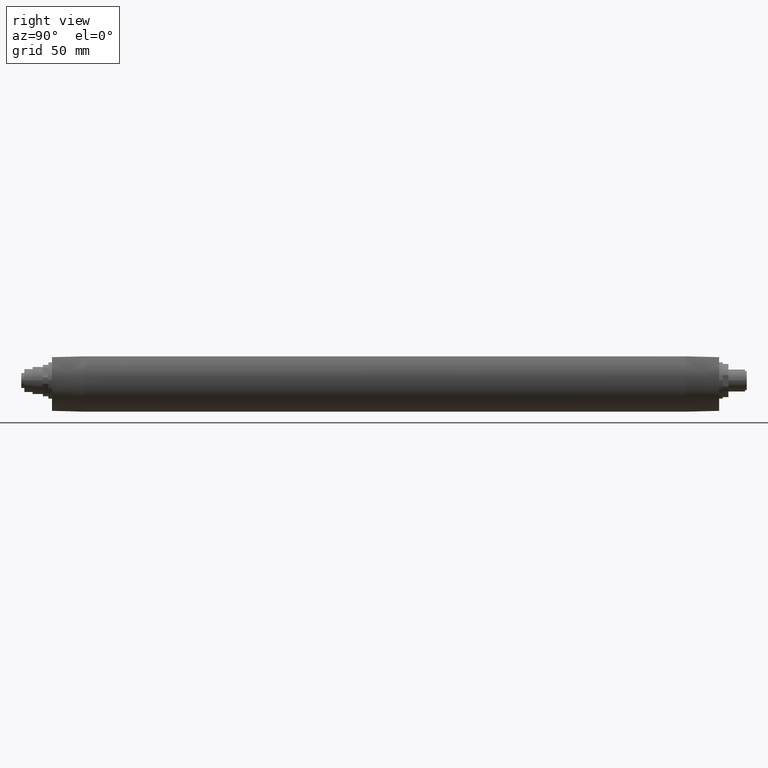
[diagram: clean part render]
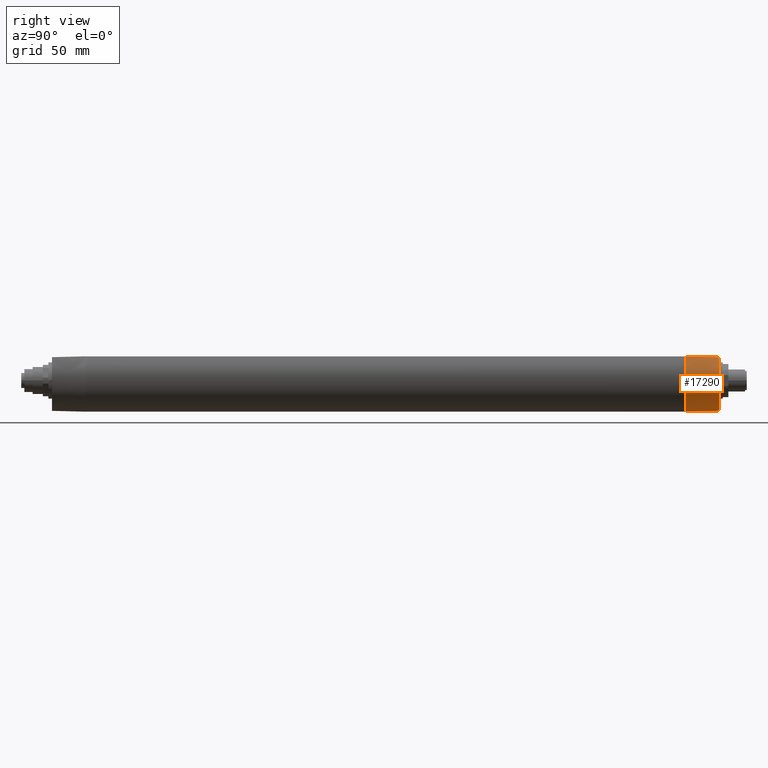
[diagram: same view with one face highlighted and labeled with its STEP entity id]
A machine part, right view. The second image highlights one B-rep face of the part: STEP entity #17290.
In plain terms, the highlighted conical surface has half-angle 1.4 deg.
Its self-contained STEP definition (entity closure, byte-faithful):
#9530=CARTESIAN_POINT('',(16.3345515631189,10.7600894754653,-93.));
#9540=VERTEX_POINT('',#9530);
#9720=CARTESIAN_POINT('',(6.88024154290118,-18.3100894754653,-93.));
#9730=VERTEX_POINT('',#9720);
#9760=CARTESIAN_POINT('',(4.26570789520023E-14,-5.6579239104059E-15,
-92.9999999999999));
#9770=DIRECTION('',(5.35723590395572E-16,-7.06812270810495E-16,-1.));
#9780=DIRECTION('',(0.,1.,-7.06812270810495E-16));
#9790=AXIS2_PLACEMENT_3D('',#9760,#9770,#9780);
#9800=CIRCLE('',#9790,19.5600894754653);
#9810=EDGE_CURVE('',#9540,#9730,#9800,.T.);
#14680=CARTESIAN_POINT('',(6.95970545354248,-18.7499999999991,
-75.0000000000014));
#14690=CARTESIAN_POINT('',(6.93336869641444,-18.6033631422291,
-81.0000006652526));
#14700=CARTESIAN_POINT('',(6.90688247259911,-18.4567263004351,
-87.0000006768101));
#14710=CARTESIAN_POINT('',(6.88024154290638,-18.3100894754644,
-92.9999999999997));
#14720=B_SPLINE_CURVE_WITH_KNOTS('',3,(#14680,#14690,#14700,#14710),
.UNSPECIFIED.,.F.,.F.,(4,4),(0.,18.0055501421486),.UNSPECIFIED.);
#14730=CARTESIAN_POINT('',(6.95970545353766,-18.7500000000003,
-74.9999999999736));
#14740=VERTEX_POINT('',#14730);
#14750=EDGE_CURVE('',#14740,#9730,#14720,.T.);
#15460=CARTESIAN_POINT('',(-5.69743333006917E-15,1.75599164270057E-15,
-74.9999999999736));
#15470=DIRECTION('',(2.67861795197786E-16,-3.53406135405247E-16,-1.));
#15480=DIRECTION('',(1.,9.46640018635614E-32,2.67861795197786E-16));
#15490=AXIS2_PLACEMENT_3D('',#15460,#15470,#15480);
#15500=CIRCLE('',#15490,20.0000000000003);
#15510=CARTESIAN_POINT('',(16.5698521417666,11.2000000000002,
-74.9999999999736));
#15520=VERTEX_POINT('',#15510);
#15530=EDGE_CURVE('',#15520,#14740,#15500,.T.);
#17000=CARTESIAN_POINT('',(16.3345515631189,10.7600894754653,
-92.9999999999993));
#17010=CARTESIAN_POINT('',(16.4135499125741,10.9067261359855,
-87.0000074056997));
#17020=CARTESIAN_POINT('',(16.4919754200436,11.0533629813374,
-81.0000072485607));
#17030=CARTESIAN_POINT('',(16.5698521417655,11.1999999999985,
-75.0000000000612));
#17040=B_SPLINE_CURVE_WITH_KNOTS('',3,(#17000,#17010,#17020,#17030),
.UNSPECIFIED.,.F.,.F.,(4,4),(0.,18.0069122704967),.UNSPECIFIED.);
#17050=EDGE_CURVE('',#9540,#15520,#17040,.T.);
#17180=CARTESIAN_POINT('',(3.27725445683323E-14,7.38333527414393E-15,
-74.5491896177813));
#17190=DIRECTION('',(-5.35723590395572E-16,7.06812270810495E-16,1.));
#17200=DIRECTION('',(0.,1.,-7.06812270810495E-16));
#17210=AXIS2_PLACEMENT_3D('',#17180,#17190,#17200);
#17220=CONICAL_SURFACE('',#17210,20.0110175684282,0.0244346095279212);
#17230=ORIENTED_EDGE('',*,*,#17050,.T.);
#17240=ORIENTED_EDGE('',*,*,#9810,.F.);
#17250=ORIENTED_EDGE('',*,*,#14750,.T.);
#17260=ORIENTED_EDGE('',*,*,#15530,.T.);
#17270=EDGE_LOOP('',(#17260,#17250,#17240,#17230));
#17280=FACE_OUTER_BOUND('',#17270,.T.);
#17290=ADVANCED_FACE('',(#17280),#17220,.T.);